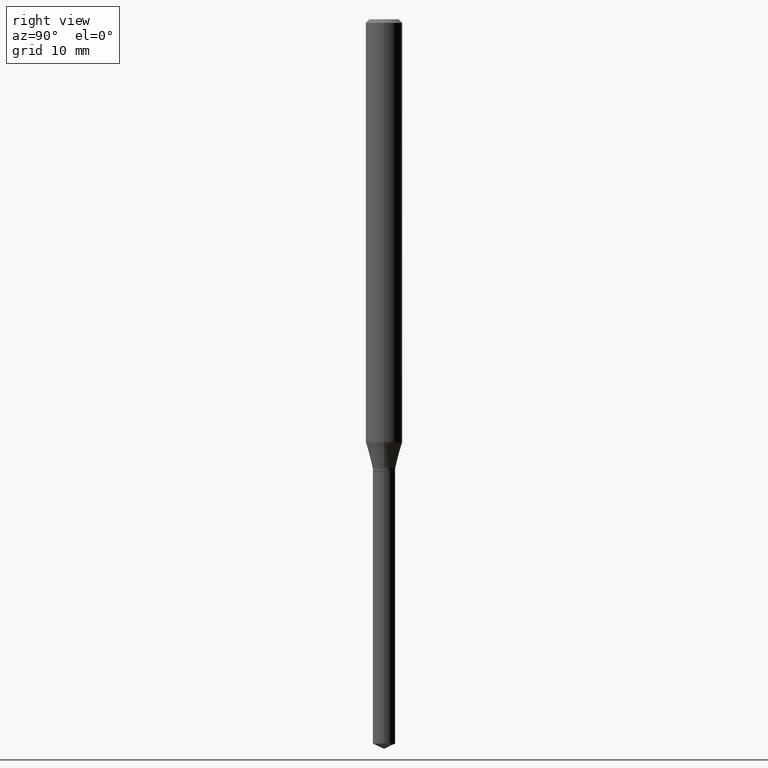
[diagram: clean part render]
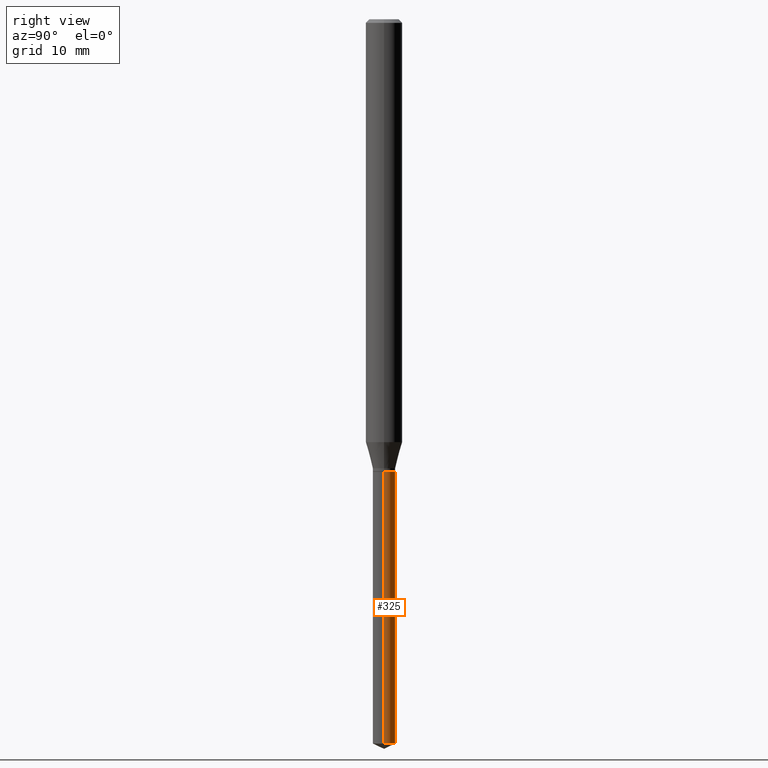
[diagram: same view with one face highlighted and labeled with its STEP entity id]
A machine part, right view. The second image highlights one B-rep face of the part: STEP entity #325.
In plain terms, the highlighted cylindrical surface (edge-blend (fillet) strip) has radius 0.9246 mm, axis along (-0, 0, 1).
Its self-contained STEP definition (entity closure, byte-faithful):
#23 = DIRECTION ( 'NONE',  ( 1.000000000000000000, -6.982962677686273810E-15, 0.000000000000000000 ) ) ;
#33 = LINE ( 'NONE', #409, #392 ) ;
#45 = CARTESIAN_POINT ( 'NONE',  ( 0.03639999999999998792, -8.442494056770533327E-15, -2.345226401243158065 ) ) ;
#48 = VERTEX_POINT ( 'NONE', #390 ) ;
#81 = VECTOR ( 'NONE', #406, 39.37007874015748143 ) ;
#104 = DIRECTION ( 'NONE',  ( 1.000000000000000000, -6.982962677686273810E-15, 0.000000000000000000 ) ) ;
#128 = AXIS2_PLACEMENT_3D ( 'NONE', #356, #394, #23 ) ;
#134 = AXIS2_PLACEMENT_3D ( 'NONE', #453, #380, #347 ) ;
#141 = CARTESIAN_POINT ( 'NONE',  ( 5.735178007681969204E-29, -8.188314215302752941E-15, -2.345226401243158065 ) ) ;
#147 = CARTESIAN_POINT ( 'NONE',  ( -0.03640000000000000180, -6.392331336269535190E-15, -1.464599999999999902 ) ) ;
#149 = EDGE_CURVE ( 'NONE', #357, #158, #397, .T. ) ;
#151 = CARTESIAN_POINT ( 'NONE',  ( -0.03640000000000000180, -4.854986013052993820E-15, -1.464599999999999902 ) ) ;
#157 = CARTESIAN_POINT ( 'NONE',  ( 0.03640000000000000180, -5.367803410337450588E-15, -1.464599999999999902 ) ) ;
#158 = VERTEX_POINT ( 'NONE', #147 ) ;
#192 = ORIENTED_EDGE ( 'NONE', *, *, #284, .T. ) ;
#194 = EDGE_CURVE ( 'NONE', #345, #357, #33, .T. ) ;
#233 = EDGE_CURVE ( 'NONE', #48, #158, #339, .T. ) ;
#284 = EDGE_CURVE ( 'NONE', #345, #48, #315, .T. ) ;
#285 = EDGE_LOOP ( 'NONE', ( #192, #399, #305, #402 ) ) ;
#305 = ORIENTED_EDGE ( 'NONE', *, *, #149, .F. ) ;
#315 = CIRCLE ( 'NONE', #430, 0.03640000000000000180 ) ;
#325 = ADVANCED_FACE ( 'NONE', ( #458 ), #451, .T. ) ;
#339 = LINE ( 'NONE', #151, #81 ) ;
#345 = VERTEX_POINT ( 'NONE', #45 ) ;
#347 = DIRECTION ( 'NONE',  ( 1.000000000000000000, -6.982962677686273810E-15, 0.000000000000000000 ) ) ;
#356 = CARTESIAN_POINT ( 'NONE',  ( 3.581633613538751591E-29, -5.113623568869670202E-15, -1.464599999999999902 ) ) ;
#357 = VERTEX_POINT ( 'NONE', #157 ) ;
#369 = DIRECTION ( 'NONE',  ( -2.445468806185136877E-29, 3.491481338843145188E-15, 1.000000000000000000 ) ) ;
#380 = DIRECTION ( 'NONE',  ( -2.445468806185136597E-29, 3.491481338843145583E-15, 1.000000000000000000 ) ) ;
#390 = CARTESIAN_POINT ( 'NONE',  ( -0.03639999999999998792, -7.929676659486076559E-15, -2.345226401243158065 ) ) ;
#392 = VECTOR ( 'NONE', #369, 39.37007874015748143 ) ;
#394 = DIRECTION ( 'NONE',  ( -2.445468806185136597E-29, 3.491481338843145583E-15, 1.000000000000000000 ) ) ;
#397 = CIRCLE ( 'NONE', #128, 0.03640000000000000180 ) ;
#399 = ORIENTED_EDGE ( 'NONE', *, *, #233, .T. ) ;
#402 = ORIENTED_EDGE ( 'NONE', *, *, #194, .F. ) ;
#406 = DIRECTION ( 'NONE',  ( -2.445468806185136877E-29, 3.491481338843145188E-15, 1.000000000000000000 ) ) ;
#409 = CARTESIAN_POINT ( 'NONE',  ( 0.03640000000000000180, -5.367803410337450588E-15, -1.464599999999999902 ) ) ;
#430 = AXIS2_PLACEMENT_3D ( 'NONE', #141, #442, #104 ) ;
#442 = DIRECTION ( 'NONE',  ( -2.445468806185136597E-29, 3.491481338843145583E-15, 1.000000000000000000 ) ) ;
#451 = CYLINDRICAL_SURFACE ( 'NONE', #134, 0.03640000000000000180 ) ;
#453 = CARTESIAN_POINT ( 'NONE',  ( 3.581633613538751591E-29, -5.113623568869670202E-15, -1.464599999999999902 ) ) ;
#458 = FACE_OUTER_BOUND ( 'NONE', #285, .T. ) ;